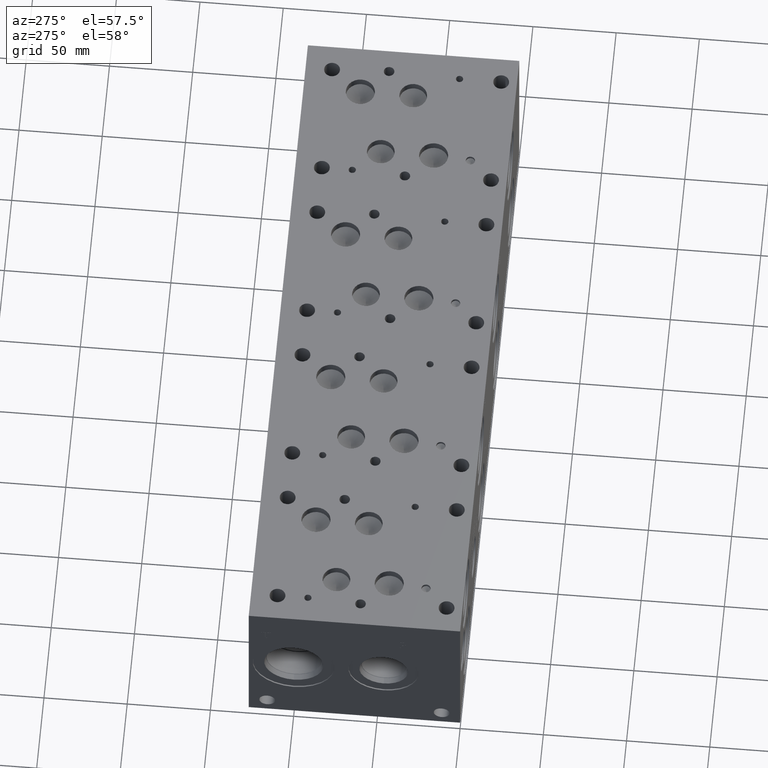
[diagram: clean part render]
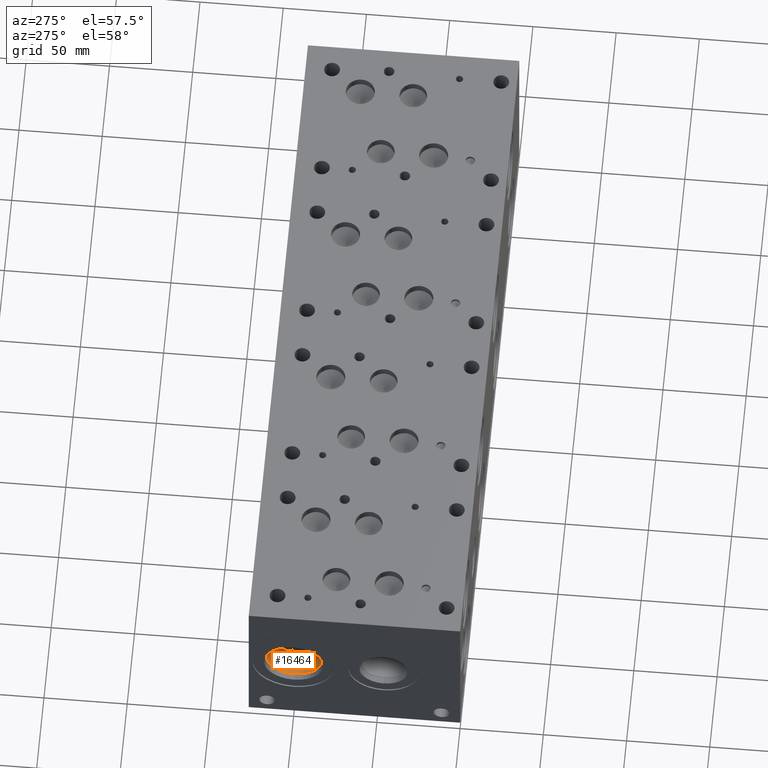
[diagram: same view with one face highlighted and labeled with its STEP entity id]
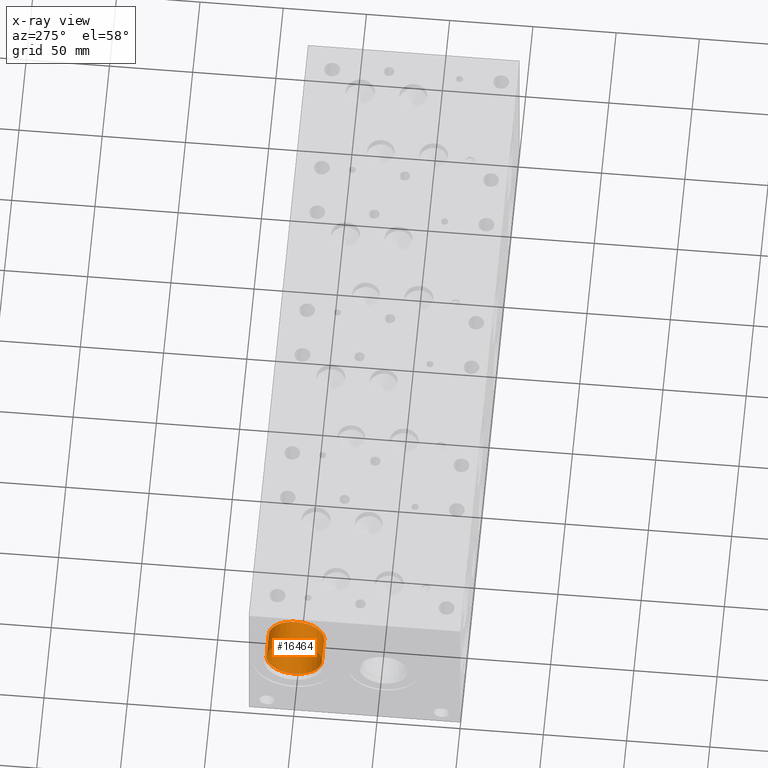
[diagram: x-ray of the same camera — body ghosted, the highlighted face saturated]
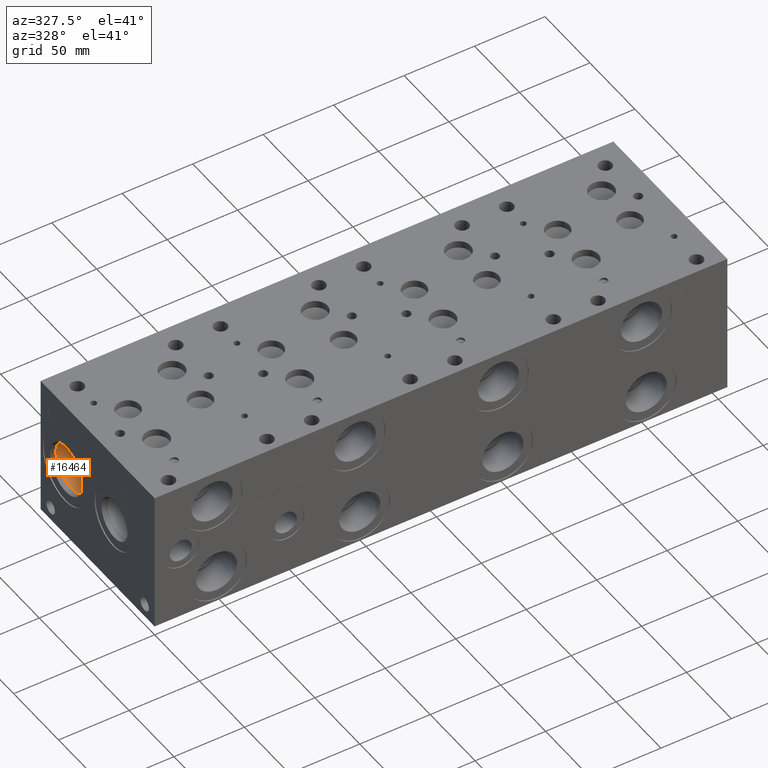
[diagram: same view with one face highlighted and labeled with its STEP entity id]
A machine part, auxiliary view. The second image highlights one B-rep face of the part: STEP entity #16464.
The next image is the same camera in x-ray: the body ghosted, the highlighted face saturated — about 0% of this face is hidden behind the body in this view.
A second angle (auxiliary view) of the same face is appended — the face is thin or edge-on in the first view.
In plain terms, the highlighted cylindrical surface (bore or boss wall) has radius 16.67 mm, axis along (-1, 0, 0).
Its self-contained STEP definition (entity closure, byte-faithful):
#30=CYLINDRICAL_SURFACE('',#17294,16.67);
#371=CIRCLE('',#17291,16.67);
#372=CIRCLE('',#17292,16.67);
#374=CIRCLE('',#17295,16.67);
#375=CIRCLE('',#17296,16.67);
#2076=FACE_OUTER_BOUND('',#3033,.T.);
#3033=EDGE_LOOP('',(#13390,#13391,#13392,#13393,#13394,#13395));
#4629=LINE('',#27334,#6071);
#6071=VECTOR('',#20327,16.67);
#7387=VERTEX_POINT('',#27324);
#7388=VERTEX_POINT('',#27325);
#7390=VERTEX_POINT('',#27331);
#7391=VERTEX_POINT('',#27332);
#9532=EDGE_CURVE('',#7387,#7388,#371,.T.);
#9533=EDGE_CURVE('',#7388,#7387,#372,.T.);
#9535=EDGE_CURVE('',#7390,#7391,#374,.T.);
#9536=EDGE_CURVE('',#7390,#7388,#4629,.T.);
#9537=EDGE_CURVE('',#7391,#7390,#375,.T.);
#13390=ORIENTED_EDGE('',*,*,#9535,.F.);
#13391=ORIENTED_EDGE('',*,*,#9536,.T.);
#13392=ORIENTED_EDGE('',*,*,#9532,.F.);
#13393=ORIENTED_EDGE('',*,*,#9533,.F.);
#13394=ORIENTED_EDGE('',*,*,#9536,.F.);
#13395=ORIENTED_EDGE('',*,*,#9537,.F.);
#16464=ADVANCED_FACE('',(#2076),#30,.F.);
#17291=AXIS2_PLACEMENT_3D('',#27326,#20317,#20318);
#17292=AXIS2_PLACEMENT_3D('',#27327,#20319,#20320);
#17294=AXIS2_PLACEMENT_3D('',#27330,#20323,#20324);
#17295=AXIS2_PLACEMENT_3D('',#27333,#20325,#20326);
#17296=AXIS2_PLACEMENT_3D('',#27335,#20328,#20329);
#20317=DIRECTION('center_axis',(-1.,0.,0.));
#20318=DIRECTION('ref_axis',(0.,1.,0.));
#20319=DIRECTION('center_axis',(-1.,0.,0.));
#20320=DIRECTION('ref_axis',(0.,1.,0.));
#20323=DIRECTION('center_axis',(-1.,0.,0.));
#20324=DIRECTION('ref_axis',(0.,1.,0.));
#20325=DIRECTION('center_axis',(1.,0.,0.));
#20326=DIRECTION('ref_axis',(0.,1.,0.));
#20327=DIRECTION('',(1.,0.,0.));
#20328=DIRECTION('center_axis',(1.,0.,0.));
#20329=DIRECTION('ref_axis',(0.,1.,0.));
#27324=CARTESIAN_POINT('',(19.8374,116.6952,50.8));
#27325=CARTESIAN_POINT('',(19.8374,83.3552,50.8));
#27326=CARTESIAN_POINT('Origin',(19.8374,100.0252,50.8));
#27327=CARTESIAN_POINT('Origin',(19.8374,100.0252,50.8));
#27330=CARTESIAN_POINT('Origin',(9.9187,100.0252,50.8));
#27331=CARTESIAN_POINT('',(4.2723,83.3552,50.8));
#27332=CARTESIAN_POINT('',(4.2723,100.0252,34.13));
#27333=CARTESIAN_POINT('Origin',(4.2723,100.0252,50.8));
#27334=CARTESIAN_POINT('',(9.9187,83.3552,50.8));
#27335=CARTESIAN_POINT('Origin',(4.2723,100.0252,50.8));